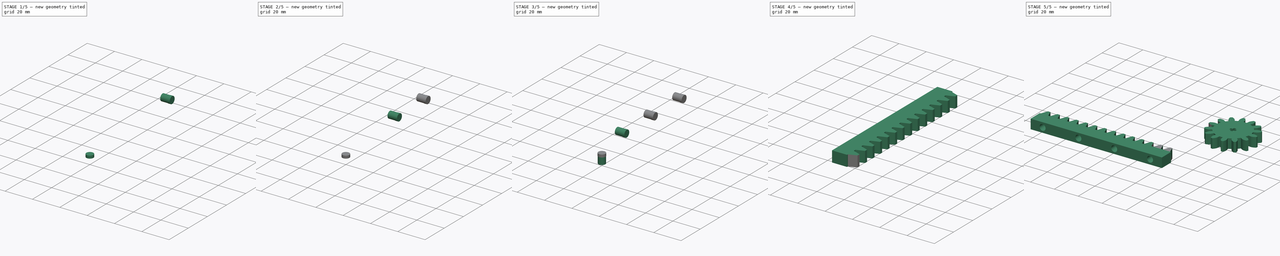
[diagram: build sequence overview — one tinted view per stage of 5, left to right]
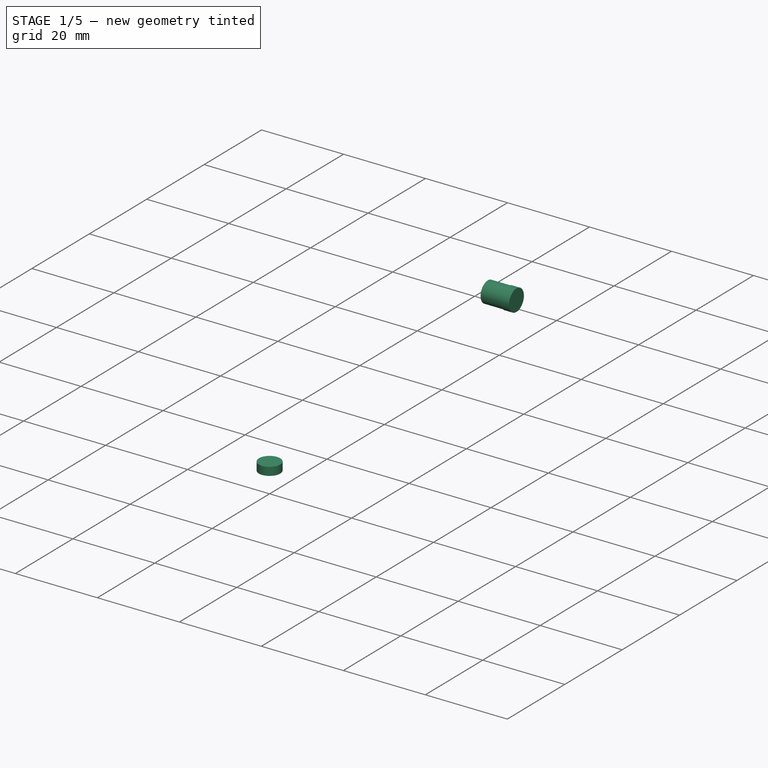
[diagram: stage 1 of 5 — iso view after this stage's code; geometry added in this stage tinted green]
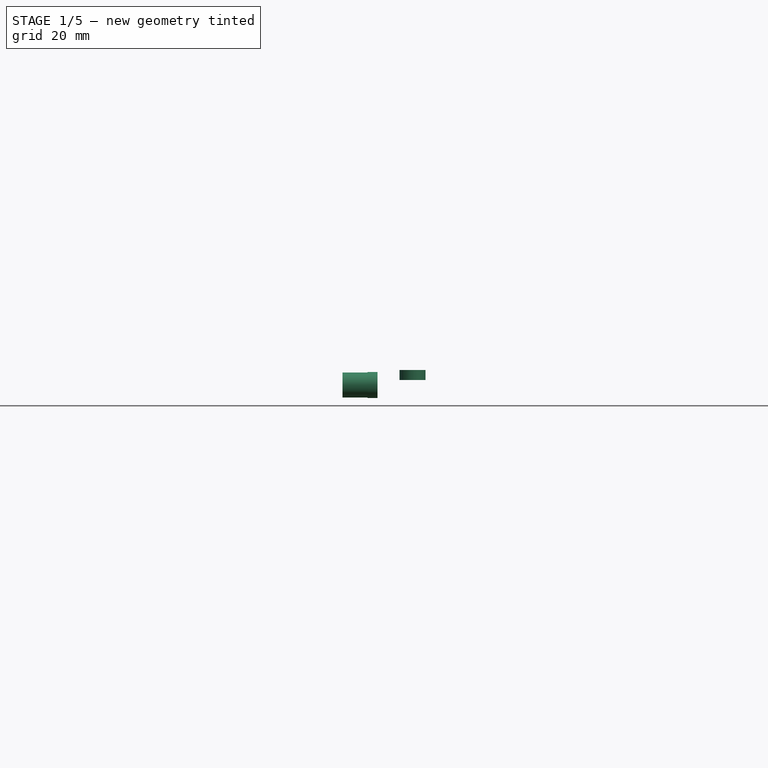
[diagram: stage 1 of 5 — front view after this stage's code; geometry added in this stage tinted green]
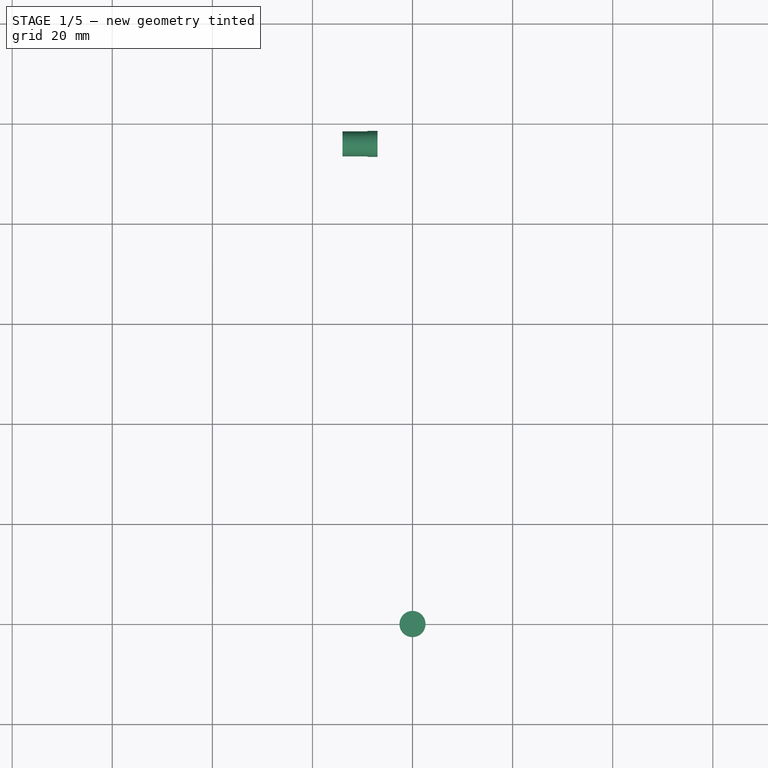
[diagram: stage 1 of 5 — top view after this stage's code; geometry added in this stage tinted green]
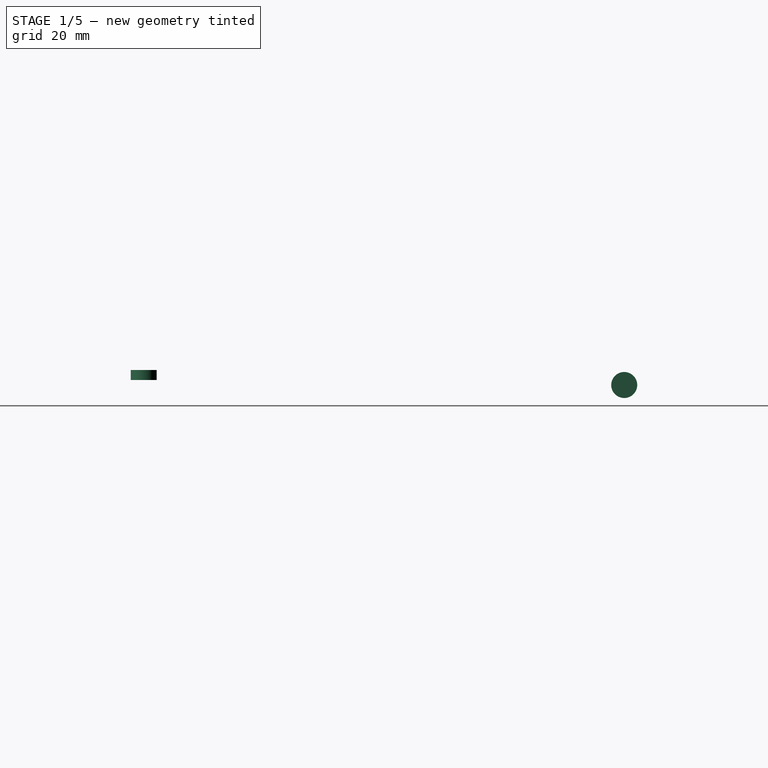
[diagram: stage 1 of 5 — right view after this stage's code; geometry added in this stage tinted green]
FCSTD DOCUMENT  (FreeCAD 0.19R24267 +99 (Git))
Label: gearRack
License: All rights reserved
LicenseURL: https://en.wikipedia.org/wiki/All_rights_reserved
objects: Part::Cylinder×8, Part::MultiFuse×5, Sketcher::SketchObject×2, Part::FeaturePython×2, Part::Cut×2, PartDesign::Pad×1, PartDesign::Body×1
note: 22 computed .brp shape members not serialized (recipe doc carries the construction recipe); baked Part::Feature solids carry a one-line shape summary decoded from their .brp

FEATURE [Part::Cylinder] Cylinder069  label="Cilindro069"
  Angle = 360
  AttacherType = Attacher::AttachEngine3D
  Height = 2
  Placement = pos=(0,0,5) rot=(0,0,1;0rad)
  Radius = 2.6
FEATURE [Part::Cylinder] Cylinder070  label="Cilindro070"
  Angle = 360
  AttacherType = Attacher::AttachEngine3D
  Height = 5
  Radius = 2.5
FEATURE [Part::Cylinder] Cylinder071  label="Cilindro071"
  Angle = 360
  AttacherType = Attacher::AttachEngine3D
  Height = 2
  Placement = pos=(0,0,5) rot=(0,0,1;0rad)
  Radius = 2.6
FEATURE [Part::MultiFuse] Fusion025  label="enganche_lego003"
  Placement = pos=(-14,96,4) rot=(0,1,0;1.5708rad)
  Shapes = -> [Cylinder070,Cylinder071]
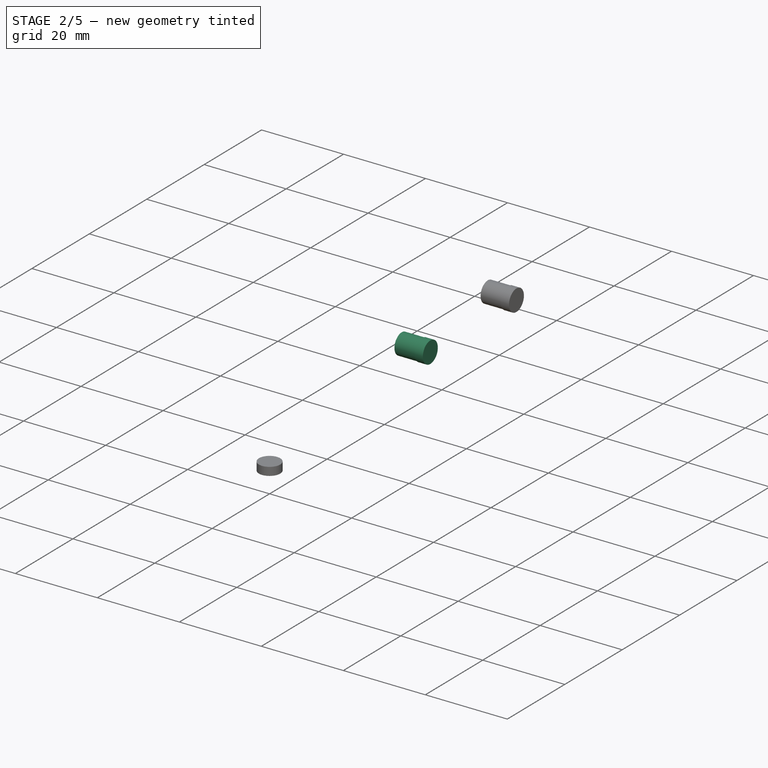
[diagram: stage 2 of 5 — iso view after this stage's code; geometry added in this stage tinted green]
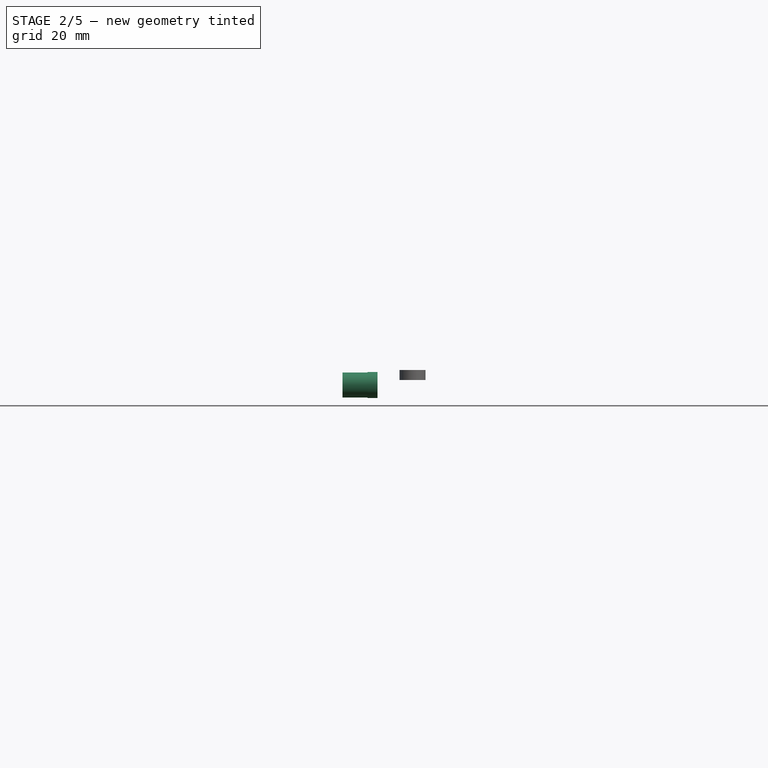
[diagram: stage 2 of 5 — front view after this stage's code; geometry added in this stage tinted green]
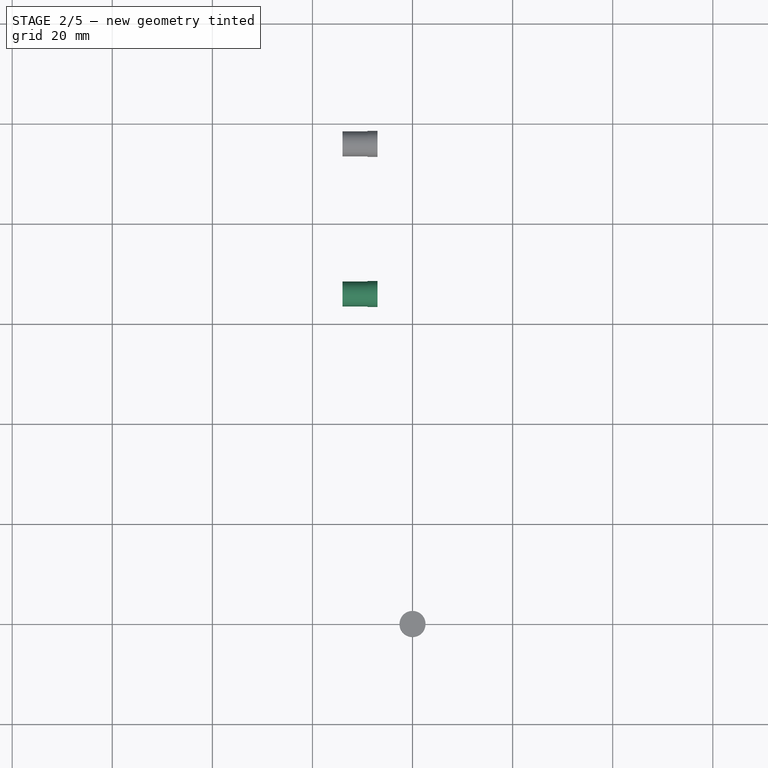
[diagram: stage 2 of 5 — top view after this stage's code; geometry added in this stage tinted green]
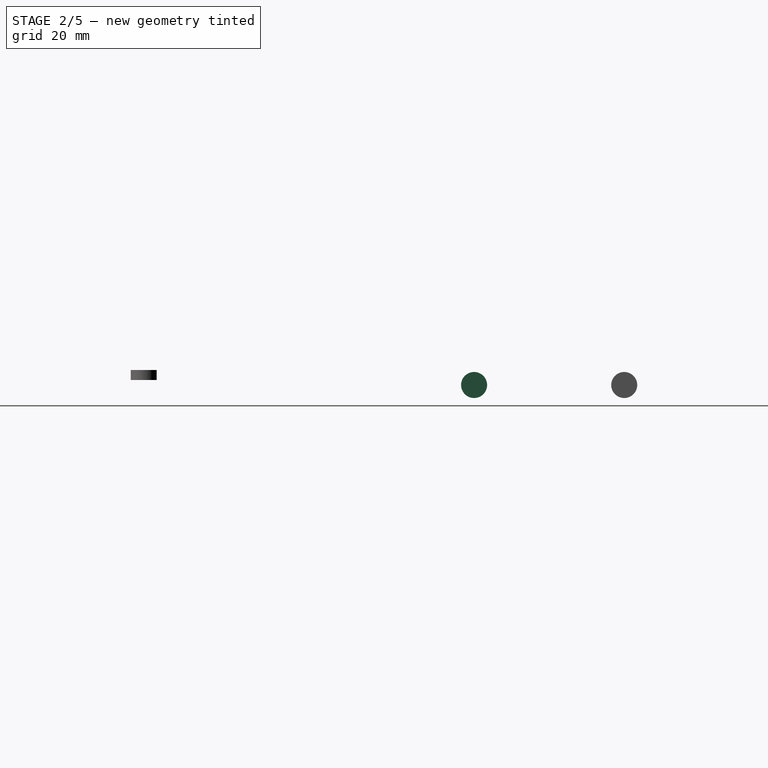
[diagram: stage 2 of 5 — right view after this stage's code; geometry added in this stage tinted green]
FEATURE [Part::Cylinder] Cylinder067  label="Cilindro067"
  Angle = 360
  AttacherType = Attacher::AttachEngine3D
  Height = 2
  Placement = pos=(0,0,5) rot=(0,0,1;0rad)
  Radius = 2.6
FEATURE [Part::Cylinder] Cylinder068  label="Cilindro068"
  Angle = 360
  AttacherType = Attacher::AttachEngine3D
  Height = 5
  Radius = 2.5
FEATURE [Part::MultiFuse] Fusion024  label="enganche_lego002"
  Placement = pos=(-14,66,4) rot=(0,1,0;1.5708rad)
  Shapes = -> [Cylinder068,Cylinder069]
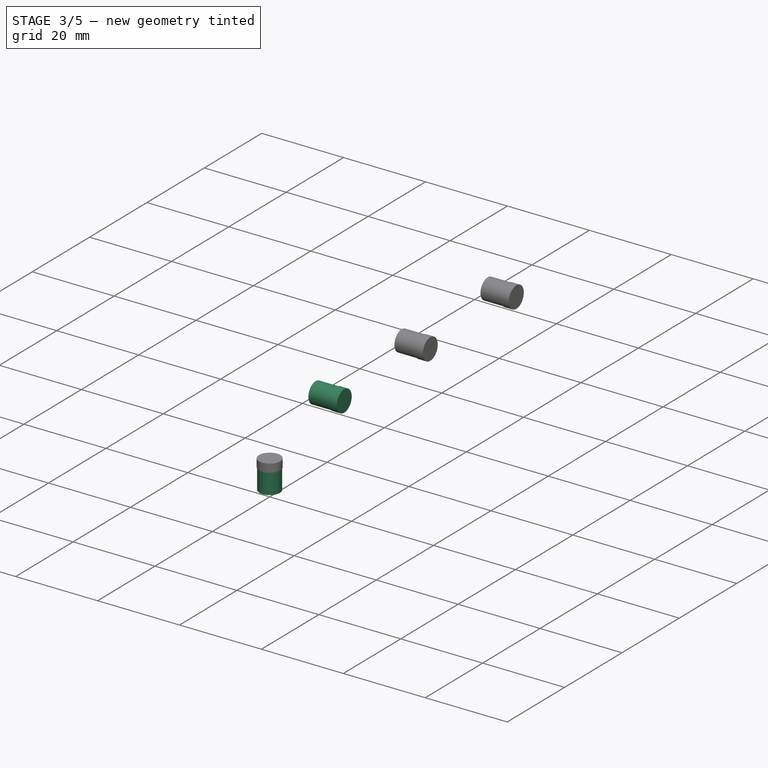
[diagram: stage 3 of 5 — iso view after this stage's code; geometry added in this stage tinted green]
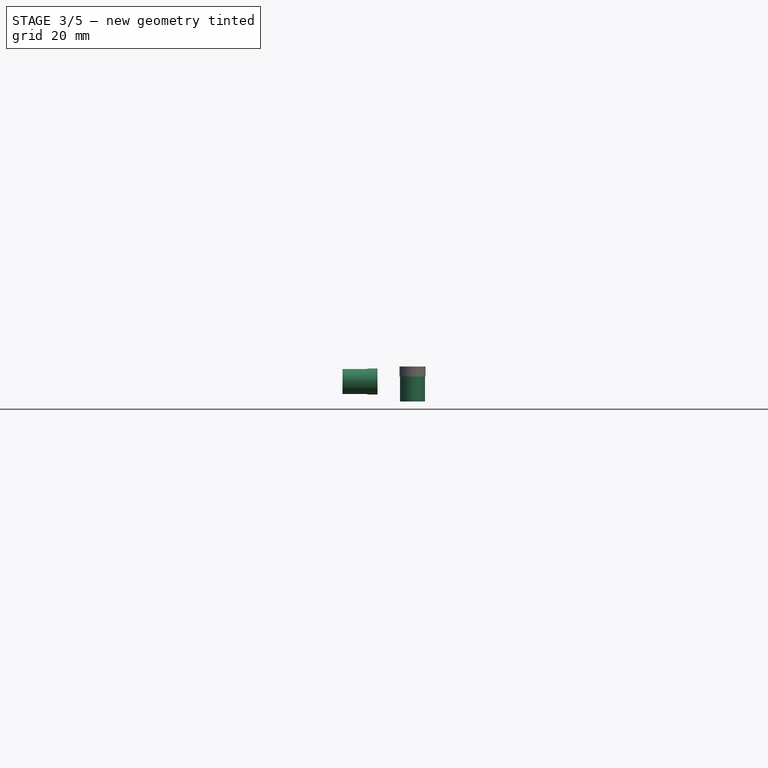
[diagram: stage 3 of 5 — front view after this stage's code; geometry added in this stage tinted green]
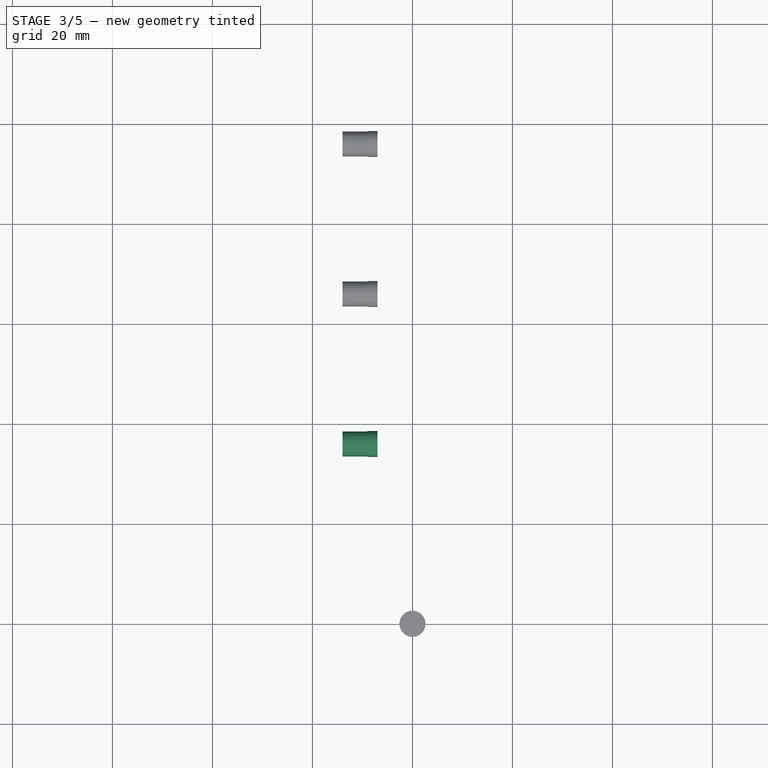
[diagram: stage 3 of 5 — top view after this stage's code; geometry added in this stage tinted green]
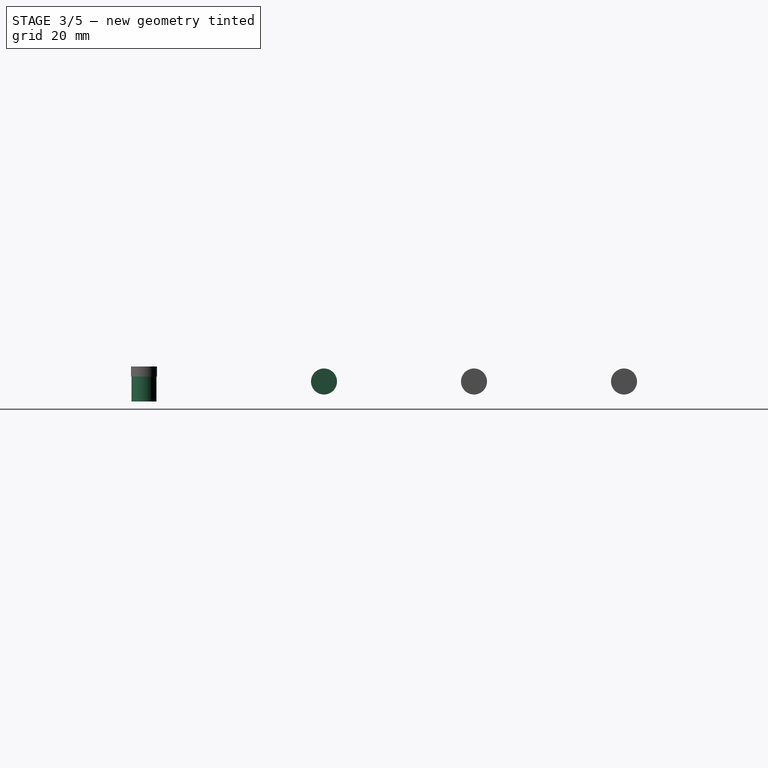
[diagram: stage 3 of 5 — right view after this stage's code; geometry added in this stage tinted green]
FEATURE [Part::Cylinder] Cylinder064  label="Cilindro064"
  Angle = 360
  AttacherType = Attacher::AttachEngine3D
  Height = 5
  Radius = 2.5
FEATURE [Part::Cylinder] Cylinder065  label="Cilindro065"
  Angle = 360
  AttacherType = Attacher::AttachEngine3D
  Height = 2
  Placement = pos=(0,0,5) rot=(0,0,1;0rad)
  Radius = 2.6
FEATURE [Part::Cylinder] Cylinder066  label="Cilindro066"
  Angle = 360
  AttacherType = Attacher::AttachEngine3D
  Height = 5
  Radius = 2.5
FEATURE [Part::MultiFuse] Fusion023  label="enganche_lego001"
  Placement = pos=(-14,36,4) rot=(0,1,0;1.5708rad)
  Shapes = -> [Cylinder066,Cylinder067]
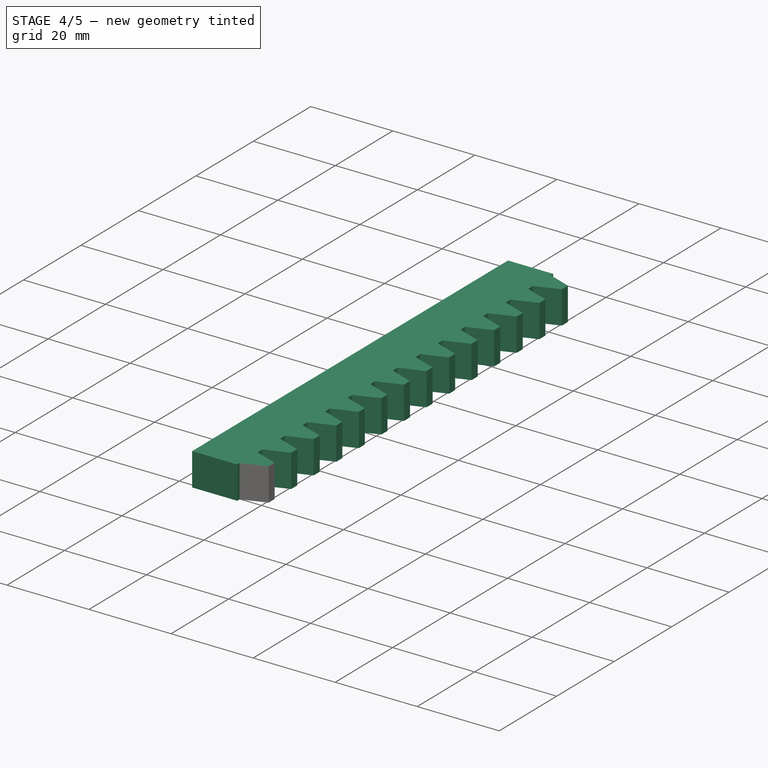
[diagram: stage 4 of 5 — iso view after this stage's code; geometry added in this stage tinted green]
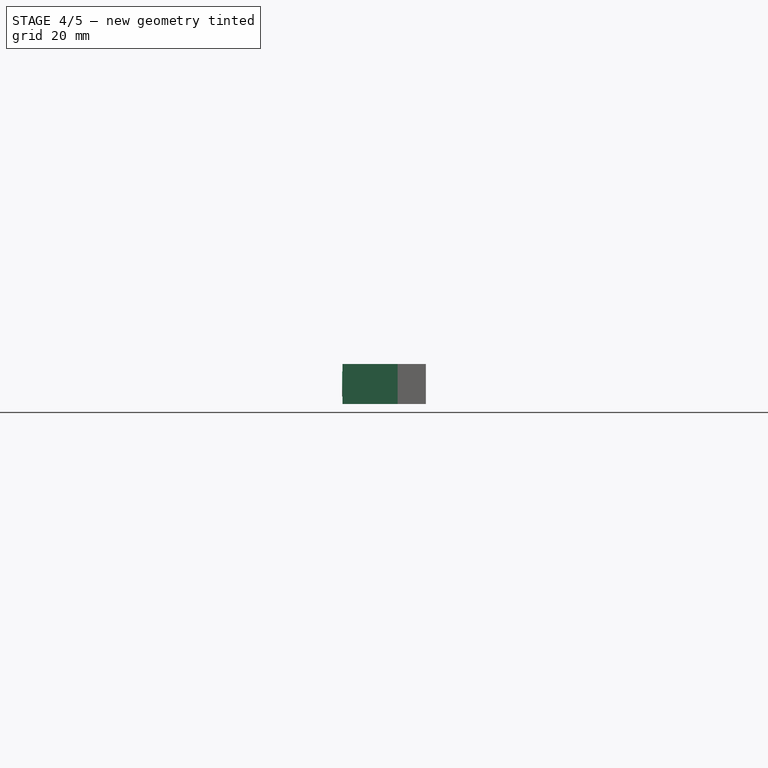
[diagram: stage 4 of 5 — front view after this stage's code; geometry added in this stage tinted green]
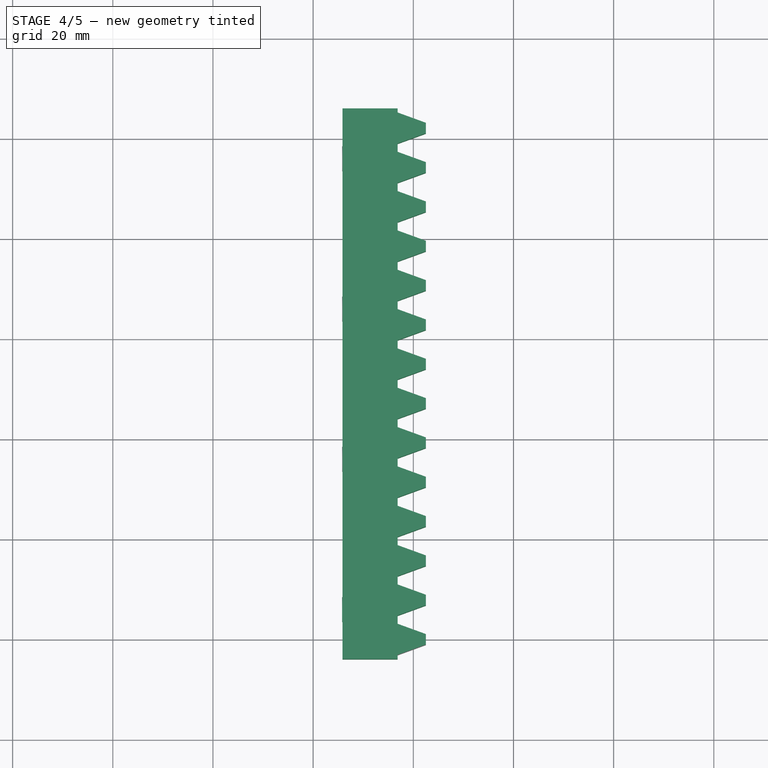
[diagram: stage 4 of 5 — top view after this stage's code; geometry added in this stage tinted green]
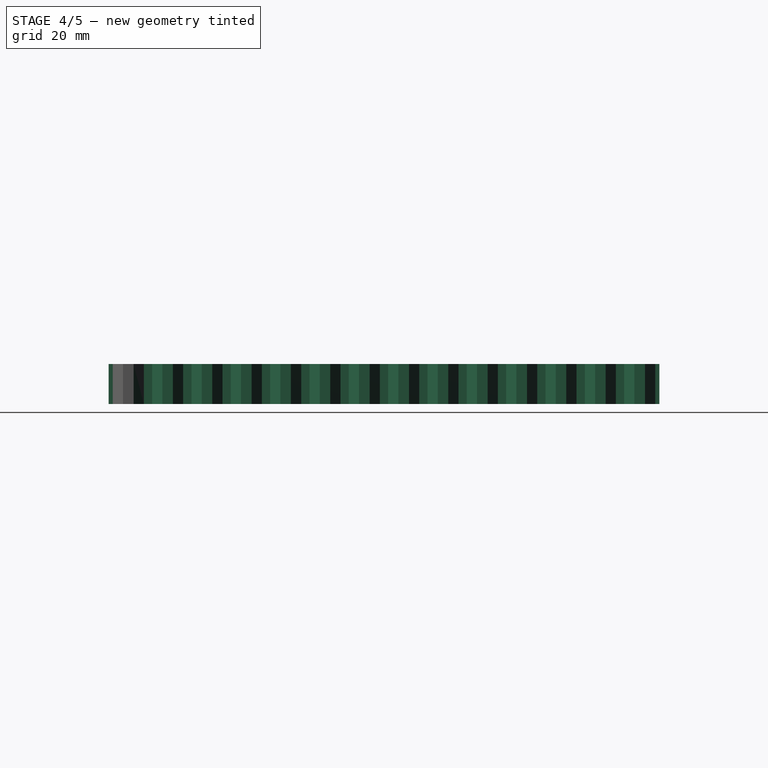
[diagram: stage 4 of 5 — right view after this stage's code; geometry added in this stage tinted green]
FEATURE [Part::FeaturePython] InvoluteRack  # WARN: FeaturePython — macro-defined, semantics opaque (R4)
  AttacherType = Attacher::AttachEngine3D
  add_endings = true
  beta = 0
  clearance = 0.25
  double_helix = false
  head = 0
  head_fillet = 0
  height = 8
  module = 2.5
  pressure_angle = 20
  properties_from_tool = false
  root_fillet = 0
  simplified = false
  teeth = 14
  thickness = 11
  transverse_pitch = 7.85398
  version = 0.0.4
FEATURE [Part::MultiFuse] Fusion022  label="enganche_lego"
  Placement = pos=(-14,6,4) rot=(0,1,0;1.5708rad)
  Shapes = -> [Cylinder064,Cylinder065]
FEATURE [Part::MultiFuse] Fusion
  Placement = pos=(-0.2,0,0) rot=(0,0,1;0rad)
  Shapes = -> [Fusion022,Fusion023,Fusion024,Fusion025]
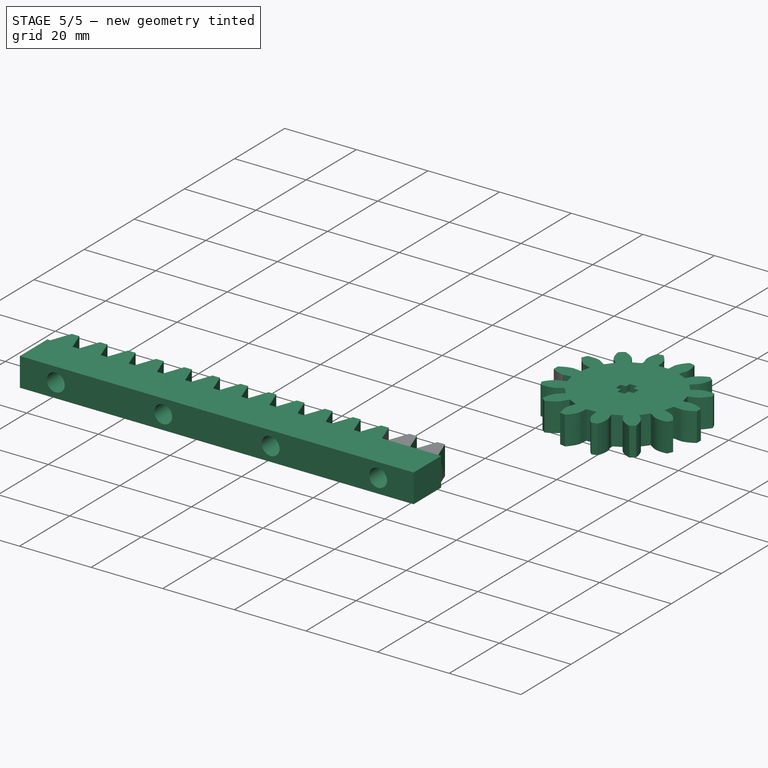
[diagram: stage 5 of 5 — iso view after this stage's code; geometry added in this stage tinted green]
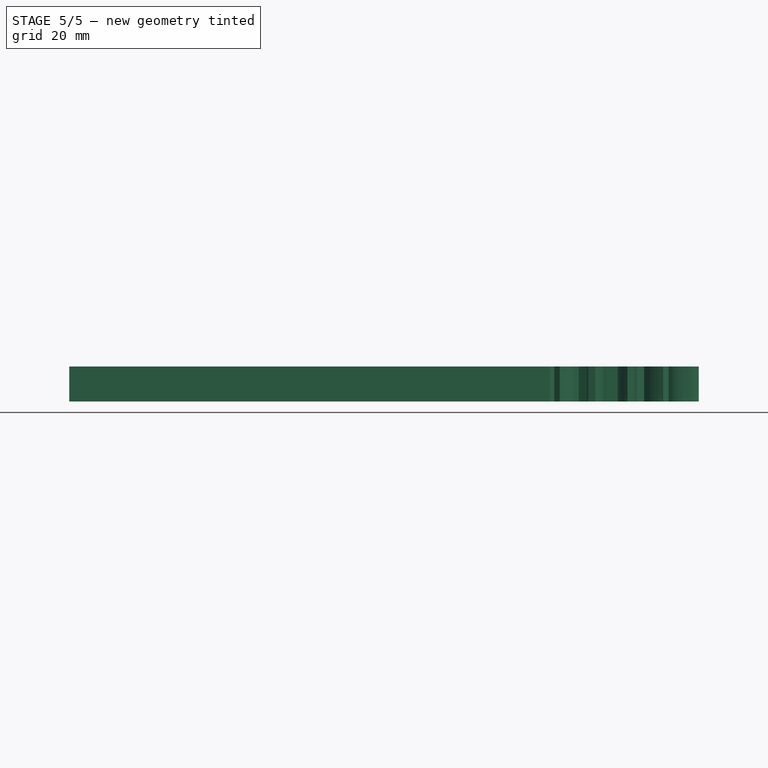
[diagram: stage 5 of 5 — front view after this stage's code; geometry added in this stage tinted green]
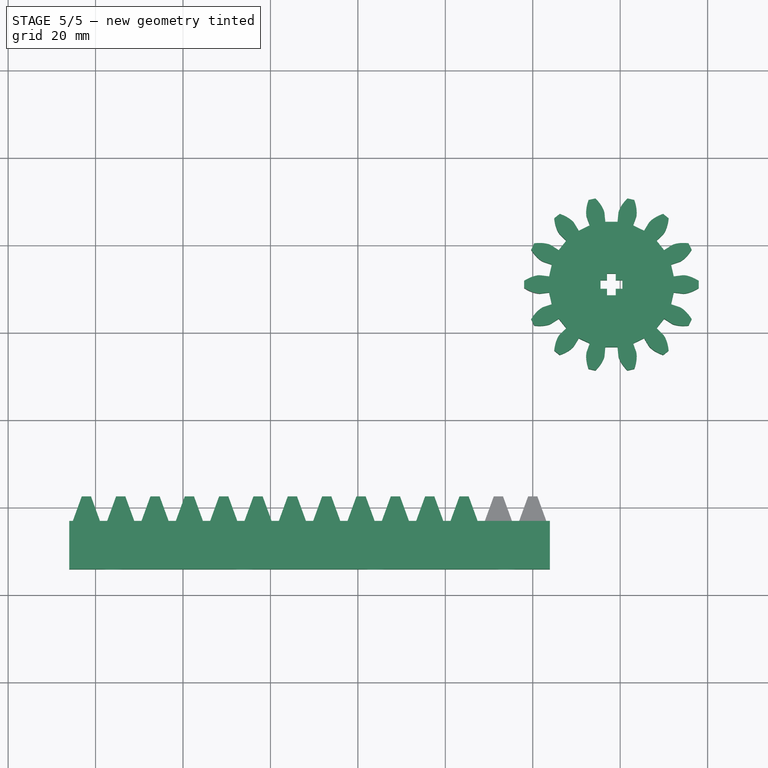
[diagram: stage 5 of 5 — top view after this stage's code; geometry added in this stage tinted green]
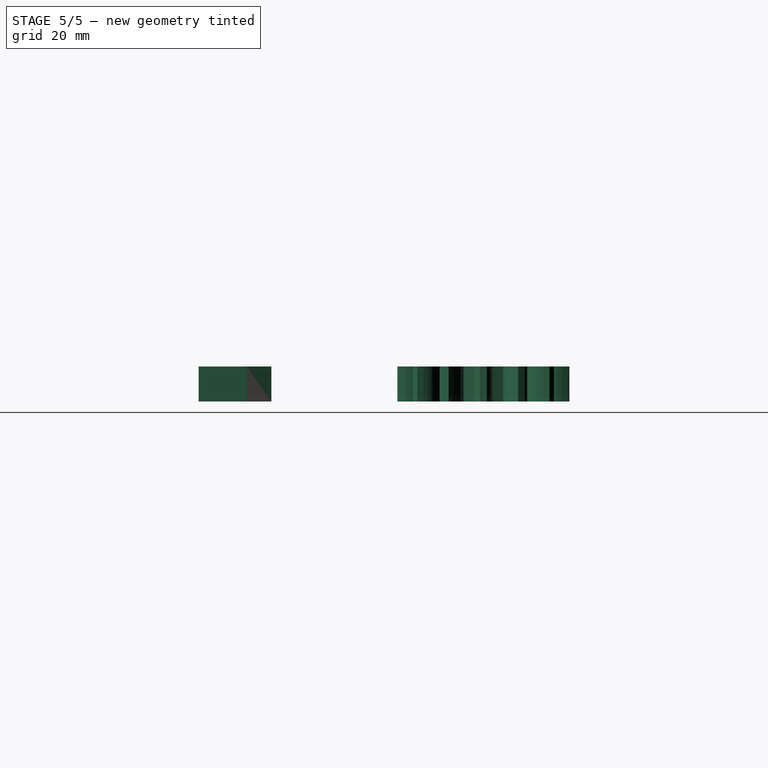
[diagram: stage 5 of 5 — right view after this stage's code; geometry added in this stage tinted green]
FEATURE [Sketcher::SketchObject] Sketch006
  FullyConstrained = true
  MapMode = 5
  Support = -> [XY_Plane004]
  sketch-geometry (20):
    g0: LineSegment StartX=0 StartY=0 StartZ=0 EndX=0 EndY=2.5 EndZ=0
    g1: LineSegment StartX=0 StartY=0 StartZ=0 EndX=-2.5 EndY=0 EndZ=0
    g2: LineSegment StartX=0 StartY=0 StartZ=0 EndX=2.5 EndY=0 EndZ=0
    g3: LineSegment StartX=0 StartY=0 StartZ=0 EndX=0 EndY=-2.5 EndZ=0
    g4: LineSegment StartX=0 StartY=-2.5 StartZ=0 EndX=-1 EndY=-2.5 EndZ=0
    g5: LineSegment StartX=0 StartY=-2.5 StartZ=0 EndX=1 EndY=-2.5 EndZ=0
    g6: LineSegment StartX=-2.5 StartY=0 StartZ=0 EndX=-2.5 EndY=1 EndZ=0
    g7: LineSegment StartX=-2.5 StartY=0 StartZ=0 EndX=-2.5 EndY=-1 EndZ=0
    g8: LineSegment StartX=0 StartY=2.5 StartZ=0 EndX=-1 EndY=2.5 EndZ=0
    g9: LineSegment StartX=0 StartY=2.5 StartZ=0 EndX=1 EndY=2.5 EndZ=0
    g10: LineSegment StartX=2.5 StartY=0 StartZ=0 EndX=2.5 EndY=1 EndZ=0
    g11: LineSegment StartX=2.5 StartY=0 StartZ=0 EndX=2.5 EndY=-1 EndZ=0
    g12: LineSegment StartX=-2.5 StartY=1 StartZ=0 EndX=-1 EndY=1 EndZ=0
    g13: LineSegment StartX=1 StartY=2.5 StartZ=0 EndX=1 EndY=1 EndZ=0
    g14: LineSegment StartX=-1 StartY=2.5 StartZ=0 EndX=-1 EndY=1 EndZ=0
    g15: LineSegment StartX=-2.5 StartY=-1 StartZ=0 EndX=-1 EndY=-1 EndZ=0
    g16: LineSegment StartX=-1 StartY=-2.5 StartZ=0 EndX=-1 EndY=-1 EndZ=0
    g17: LineSegment StartX=2.5 StartY=-1 StartZ=0 EndX=1 EndY=-1 EndZ=0
    g18: LineSegment StartX=1 StartY=-2.5 StartZ=0 EndX=1 EndY=-1 EndZ=0
    g19: LineSegment StartX=2.5 StartY=1 StartZ=0 EndX=1 EndY=1 EndZ=0
  constraints (56):
    c: Coincident(g0,g-1)
    c: PointOnObject(g0,g-2)
    c: Coincident(g1,g-1)
    c: PointOnObject(g1,g-1)
    c: Coincident(g2,g-1)
    c: PointOnObject(g2,g-1)
    c: Coincident(g3,g-1)
    c: PointOnObject(g3,g-2)
    c: DistanceX(g1,g1) = 2.5
    c: DistanceX(g2,g2) = 2.5
    c: DistanceY(g0,g0) = 2.5
    c: DistanceY(g3,g3) = 2.5
    c: Coincident(g4,g3)
    c: Horizontal(g4)
    c: Coincident(g5,g4)
    c: Horizontal(g5)
    c: DistanceX(g4,g4) = 1
    c: DistanceX(g5,g5) = 1
    c: Coincident(g6,g1)
    c: Vertical(g6)
    c: Coincident(g7,g6)
    c: Vertical(g7)
    c: Coincident(g8,g0)
    c: Horizontal(g8)
    c: Coincident(g9,g8)
    c: Coincident(g10,g2)
    c: Vertical(g10)
    c: Coincident(g11,g10)
    c: Vertical(g11)
    c: Horizontal(g9)
    c: DistanceX(g8,g8) = 1
    c: DistanceX(g9,g9) = 1
    c: DistanceY(g10,g10) = 1
    c: DistanceY(g11,g11) = 1
    c: DistanceY(g7,g7) = 1
    c: DistanceY(g6,g6) = 1
    c: Coincident(g12,g6)
    c: Horizontal(g12)
    c: Coincident(g13,g9)
    c: Vertical(g13)
    c: Coincident(g14,g8)
    c: Coincident(g14,g12)
    c: Vertical(g14)
    c: Coincident(g15,g7)
    c: Horizontal(g15)
    c: Coincident(g16,g4)
    c: Coincident(g16,g15)
    c: Vertical(g16)
    c: Coincident(g17,g11)
    c: Horizontal(g17)
    c: Coincident(g18,g5)
    c: Coincident(g18,g17)
    c: Vertical(g18)
    c: Coincident(g19,g10)
    c: Coincident(g19,g13)
    c: Horizontal(g19)
FEATURE [PartDesign::Pad] Pad006
  Direction = (1,1,1)
  Length = 10
  Length2 = 100
  Profile = -> Sketch006
  Type = 0
FEATURE [Part::FeaturePython] InvoluteGear  # WARN: FeaturePython — macro-defined, semantics opaque (R4)
  AttacherType = Attacher::AttachEngine3D
  angular_backlash = 0
  backlash = 0
  beta = 0
  clearance = 0.25
  da = 40
  df = 28.75
  double_helix = false
  dw = 35
  head = 0
  head_fillet = 0
  height = 8
  module = 2.5
  numpoints = 6
  pressure_angle = 20
  properties_from_tool = false
  reversed_backlash = false
  root_fillet = 0
  shift = 0
  simple = false
  teeth = 14
  transverse_pitch = 7.85398
  traverse_module = 2.5
  undercut = false
  version = 0.0.4
  expr: angular_backlash = backlash / dw * 360° / pi
FEATURE [Sketcher::SketchObject] Sketch
  FullyConstrained = false
  MapMode = 5
  Support = -> [XY_Plane004]
  sketch-geometry (2):
    g0: LineSegment StartX=2.48728 StartY=101.993 StartZ=0 EndX=-13.1735 EndY=101.993 EndZ=0
    g1: LineSegment StartX=18.985 StartY=54.9891 StartZ=0 EndX=-13.0968 EndY=54.9891 EndZ=0
  constraints (2):
    c: Horizontal(g0)
    c: Horizontal(g1)
FEATURE [PartDesign::Body] Body004
  Group = -> [Sketch006,Pad006,Sketch]
  Origin = -> Origin004
  Tip = -> Pad006
FEATURE [Part::Cut] Cut  label="engranaje"
  Base = -> InvoluteGear
  Placement = pos=(18,51,0) rot=(0,0,1;0rad)
  Tool = -> Body004
FEATURE [Part::Cut] Cut001  label="cremallera"
  Base = -> InvoluteRack
  Placement = pos=(0,0,0) rot=(0,0,1;1.5708rad)
  Tool = -> Fusion
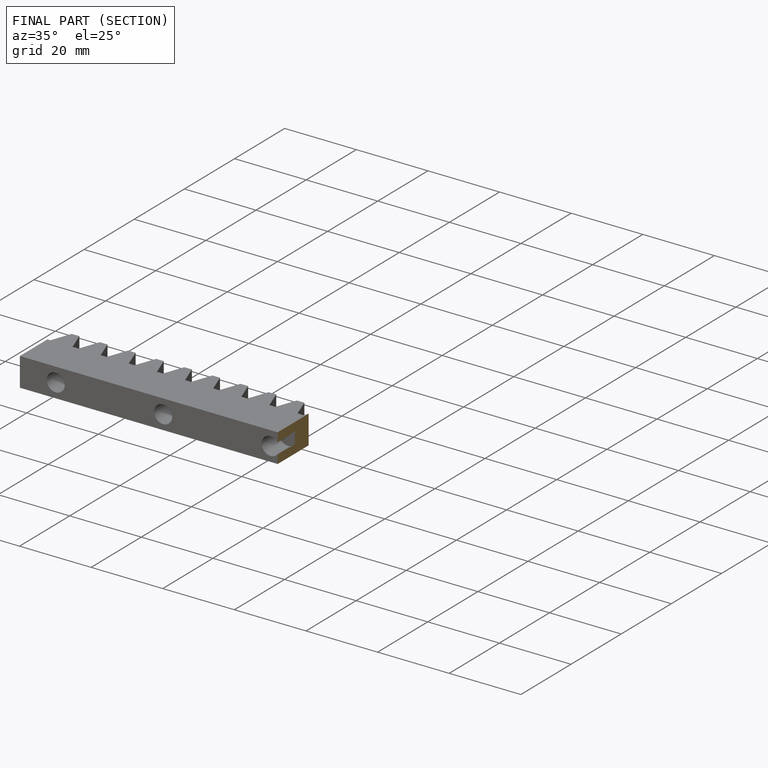
[diagram: finished part — half-section view (interior)]
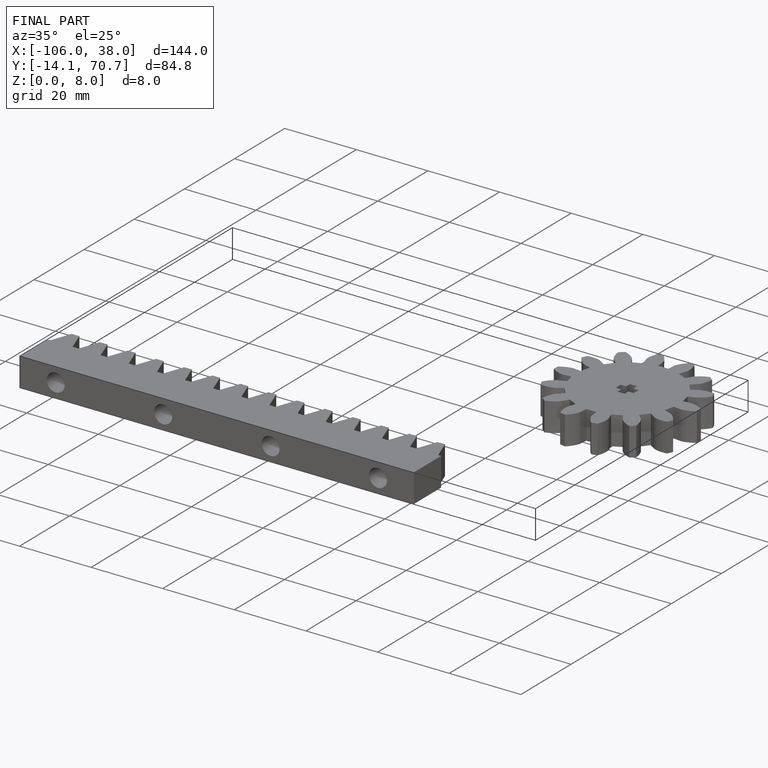
[diagram: finished part — iso view with bounding-box wireframe]
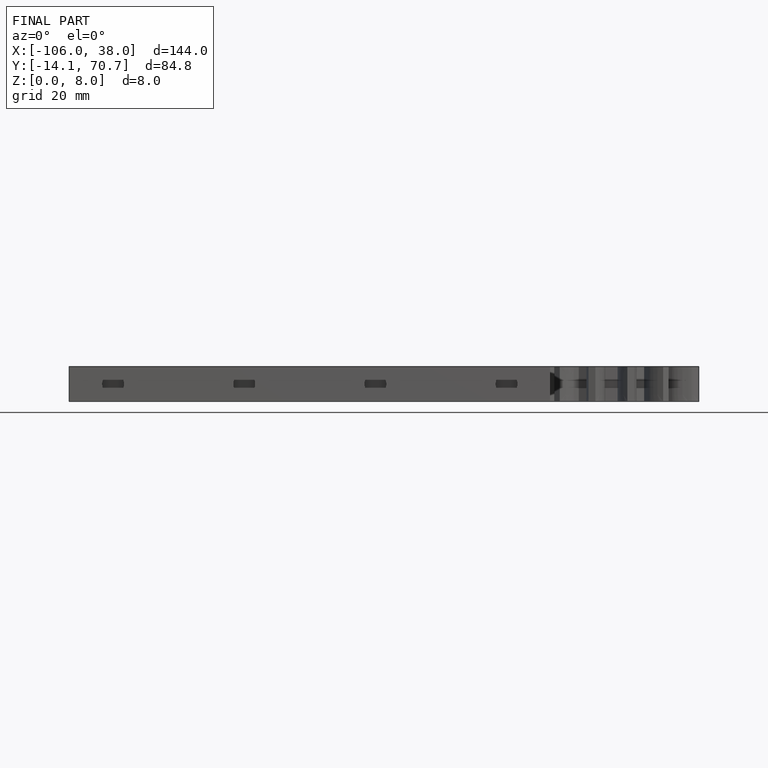
[diagram: finished part — front view with bounding-box wireframe]
